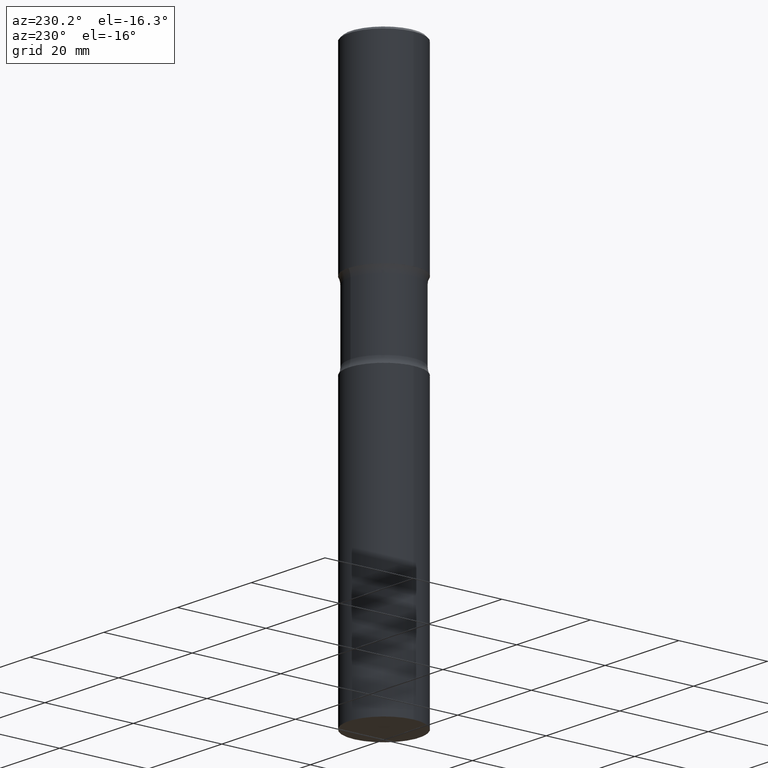
[diagram: clean part render]
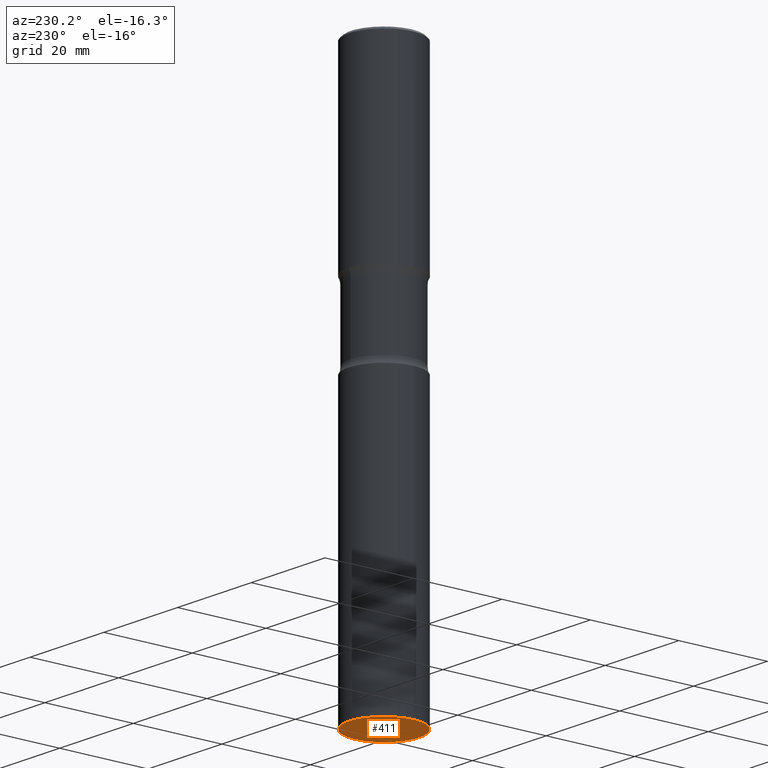
[diagram: same view with one face highlighted and labeled with its STEP entity id]
A machine part, auxiliary view. The second image highlights one B-rep face of the part: STEP entity #411.
In plain terms, the highlighted planar face has unit normal (0, -0, -1).
Its self-contained STEP definition (entity closure, byte-faithful):
#4 = DIRECTION ( 'NONE',  ( -1.000000000000000000, 6.982962677686265922E-15, -4.876176775795935793E-29 ) ) ;
#72 = CARTESIAN_POINT ( 'NONE',  ( 1.203488563587891146E-28, -1.718262711284877024E-14, -4.921299999999999564 ) ) ;
#80 = AXIS2_PLACEMENT_3D ( 'NONE', #107, #262, #413 ) ;
#95 = CARTESIAN_POINT ( 'NONE',  ( 1.203488563587891146E-28, -1.718262711284877024E-14, -4.921299999999999564 ) ) ;
#104 = ORIENTED_EDGE ( 'NONE', *, *, #108, .F. ) ;
#106 = EDGE_CURVE ( 'NONE', #293, #210, #506, .T. ) ;
#107 = CARTESIAN_POINT ( 'NONE',  ( 1.203488563587891146E-28, -1.718262711284877024E-14, -4.921299999999999564 ) ) ;
#108 = EDGE_CURVE ( 'NONE', #210, #293, #264, .T. ) ;
#164 = CARTESIAN_POINT ( 'NONE',  ( -0.3149499999999998967, -1.054603000183079934E-14, -4.921299999999999564 ) ) ;
#205 = CARTESIAN_POINT ( 'NONE',  ( 0.3149499999999998967, -1.938191120818605853E-14, -4.921299999999999564 ) ) ;
#206 = PLANE ( 'NONE',  #308 ) ;
#210 = VERTEX_POINT ( 'NONE', #205 ) ;
#213 = FACE_OUTER_BOUND ( 'NONE', #362, .T. ) ;
#225 = DIRECTION ( 'NONE',  ( -2.445468806185136597E-29, 3.491481338843145583E-15, 1.000000000000000000 ) ) ;
#240 = AXIS2_PLACEMENT_3D ( 'NONE', #72, #225, #418 ) ;
#262 = DIRECTION ( 'NONE',  ( -2.445468806185136597E-29, 3.491481338843145583E-15, 1.000000000000000000 ) ) ;
#264 = CIRCLE ( 'NONE', #240, 0.3149499999999998967 ) ;
#293 = VERTEX_POINT ( 'NONE', #164 ) ;
#308 = AXIS2_PLACEMENT_3D ( 'NONE', #95, #439, #4 ) ;
#362 = EDGE_LOOP ( 'NONE', ( #104, #476 ) ) ;
#411 = ADVANCED_FACE ( 'NONE', ( #213 ), #206, .T. ) ;
#413 = DIRECTION ( 'NONE',  ( 1.000000000000000000, -6.982962677686259611E-15, 0.000000000000000000 ) ) ;
#418 = DIRECTION ( 'NONE',  ( 1.000000000000000000, -6.982962677686259611E-15, 0.000000000000000000 ) ) ;
#439 = DIRECTION ( 'NONE',  ( 2.438088387897960049E-29, -3.491481338843145188E-15, -1.000000000000000000 ) ) ;
#476 = ORIENTED_EDGE ( 'NONE', *, *, #106, .F. ) ;
#506 = CIRCLE ( 'NONE', #80, 0.3149499999999998967 ) ;